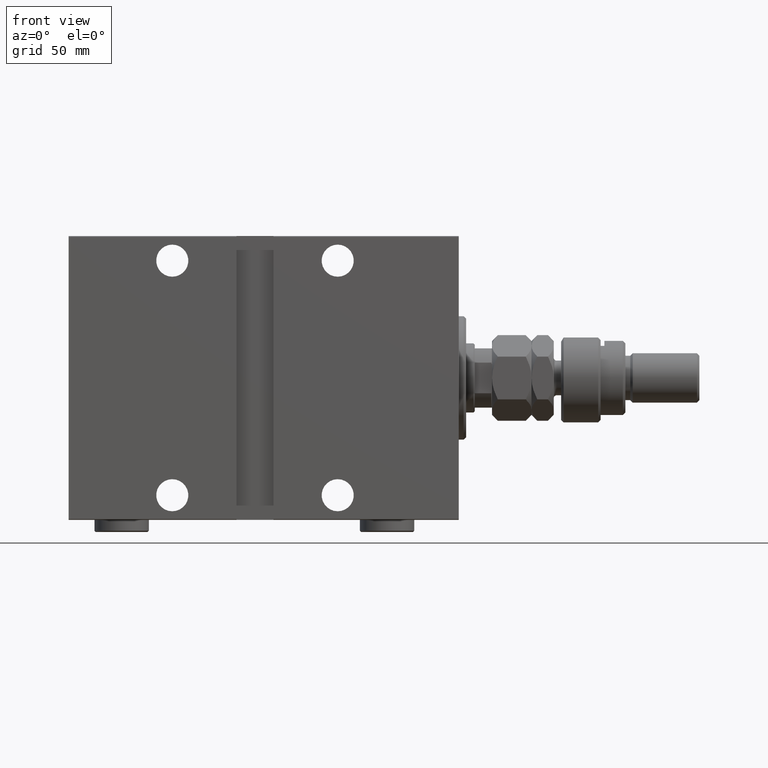
[diagram: clean part render]
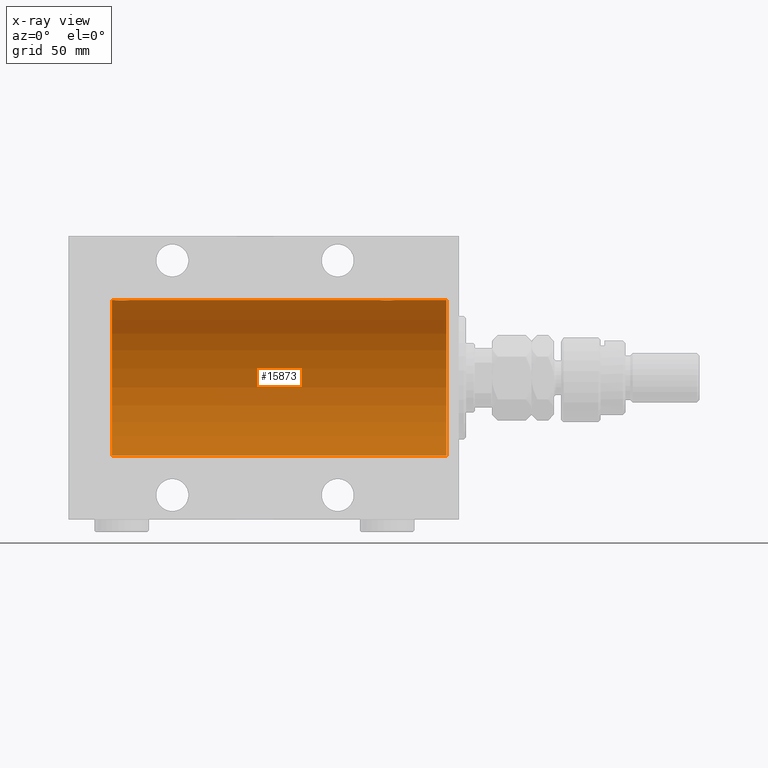
[diagram: x-ray — body ghosted, one internal face saturated and labeled with its STEP entity id]
A machine part, front view, then the same camera in x-ray: the body is ghosted and one INTERNAL B-rep face — a face not visible from any outside direction — is saturated and labeled: STEP entity #15873.
In plain terms, the highlighted cylindrical surface (partial cylindrical patch) has radius 31.5 mm, axis along (1, 0, -0).
Its self-contained STEP definition (entity closure, byte-faithful):
#548 = EDGE_CURVE ( 'NONE', #21606, #18342, #28267, .T. ) ;
#700 = DIRECTION ( 'NONE',  ( -1.000000000000000000, -0.000000000000000000, -0.000000000000000000 ) ) ;
#787 = VERTEX_POINT ( 'NONE', #28216 ) ;
#1237 = CARTESIAN_POINT ( 'NONE',  ( 26.09580549261944071, -0.7775502215293879082, 31.49099686045559565 ) ) ;
#1557 = DIRECTION ( 'NONE',  ( -1.000000000000000000, -0.000000000000000000, -0.000000000000000000 ) ) ;
#2182 = CARTESIAN_POINT ( 'NONE',  ( 30.82704225370269668, -2.387531469909775605, 31.40957782495775419 ) ) ;
#2404 = CARTESIAN_POINT ( 'NONE',  ( 26.39582218725271190, -1.502389880413000922, 31.46458023642405166 ) ) ;
#2419 = CARTESIAN_POINT ( 'NONE',  ( 133.8958221872527474, -1.502389880412996703, 31.46458023642405877 ) ) ;
#2638 = CARTESIAN_POINT ( 'NONE',  ( 28.03055544341478367, -2.845838211243338023, 31.37127560316188024 ) ) ;
#2656 = CARTESIAN_POINT ( 'NONE',  ( 134.5153964007533887, -2.258226318633794527, 31.41925597582824992 ) ) ;
#2898 = CARTESIAN_POINT ( 'NONE',  ( 139.5000000000000000, -0.3965830985361755712, 31.50000000000000000 ) ) ;
#3365 = CARTESIAN_POINT ( 'NONE',  ( 136.2995354102590113, -2.999845816735298598, 31.35683219171744796 ) ) ;
#3676 = LINE ( 'NONE', #26117, #35295 ) ;
#4490 = FACE_OUTER_BOUND ( 'NONE', #45487, .T. ) ;
#5281 = CARTESIAN_POINT ( 'NONE',  ( 29.77469094434372465, -2.904836261170110845, 31.36579955910872997 ) ) ;
#5989 = CARTESIAN_POINT ( 'NONE',  ( 31.69529642359011135, -1.331741824817660236, 31.47235367475394341 ) ) ;
#6227 = CARTESIAN_POINT ( 'NONE',  ( 139.1952964235900936, -1.331741824817663344, 31.47235367475393630 ) ) ;
#6364 = EDGE_CURVE ( 'NONE', #6410, #21606, #3676, .T. ) ;
#6410 = VERTEX_POINT ( 'NONE', #25416 ) ;
#6939 = CARTESIAN_POINT ( 'NONE',  ( 137.2746909443437175, -2.904836261170105960, 31.36579955910873707 ) ) ;
#6944 = VERTEX_POINT ( 'NONE', #28180 ) ;
#7596 = DIRECTION ( 'NONE',  ( -1.000000000000000000, -0.000000000000000000, -0.000000000000000000 ) ) ;
#7975 = EDGE_CURVE ( 'NONE', #13580, #17871, #37231, .T. ) ;
#8346 = B_SPLINE_CURVE_WITH_KNOTS ( 'NONE', 3,
 ( #11988, #33946, #26554, #1237, #30379, #12214, #2404, #16758, #30846, #20118, #45146, #42280, #38693, #2638, #16530, #41572, #45852, #17225, #37998, #5281, #35355, #9804, #9567, #2182, #46083, #13158, #45386, #24156, #5989, #20349, #27011, #45628 ),
 .UNSPECIFIED., .F., .F.,
 ( 4, 2, 2, 2, 2, 2, 2, 2, 2, 2, 2, 2, 2, 2, 2, 4 ),
 ( 0.009384682587134636142, 0.009971088165454035368, 0.01055749374377343633, 0.01114389932209283729, 0.01173030490041223652, 0.01231671047873163748, 0.01290311605705103844, 0.01348952163537044113, 0.01407592721368984209, 0.01466233279200924305, 0.01524873837032864402, 0.01583514394864804498, 0.01642154952696744594, 0.01700795510528684690, 0.01759436068360624786, 0.01876717184024504284 ),
 .UNSPECIFIED. ) ;
#8952 = LINE ( 'NONE', #34266, #35517 ) ;
#9567 = CARTESIAN_POINT ( 'NONE',  ( 30.50098156296147422, -2.604888532024794312, 31.39229907792057972 ) ) ;
#9581 = CARTESIAN_POINT ( 'NONE',  ( 135.7211808735767988, -2.903733559410680343, 31.36590199989304395 ) ) ;
#9727 = DIRECTION ( 'NONE',  ( -1.000000000000000000, 0.000000000000000000, 0.000000000000000000 ) ) ;
#9804 = CARTESIAN_POINT ( 'NONE',  ( 30.32865414687508832, -2.696917666262911961, 31.38442820068732075 ) ) ;
#9819 = CARTESIAN_POINT ( 'NONE',  ( 139.1019214043915895, -1.506272792558317253, 31.46439306106696421 ) ) ;
#10052 = CARTESIAN_POINT ( 'NONE',  ( 133.8028576116330441, -1.328004386210311027, 31.47251238182141009 ) ) ;
#10366 = CARTESIAN_POINT ( 'NONE',  ( 140.5000000000000000, 0.000000000000000000, 31.50000000000000000 ) ) ;
#10534 = CARTESIAN_POINT ( 'NONE',  ( 138.7582450190326711, -1.984587626072075617, 31.43772577203671759 ) ) ;
#10949 = CYLINDRICAL_SURFACE ( 'NONE', #19184, 31.50000000000000000 ) ;
#10955 = EDGE_CURVE ( 'NONE', #787, #28714, #8346, .T. ) ;
#11397 = CARTESIAN_POINT ( 'NONE',  ( 5.000000000000004441, 3.857637417314162689E-15, -31.50000000000000000 ) ) ;
#11506 = AXIS2_PLACEMENT_3D ( 'NONE', #14181, #28504, #43054 ) ;
#11771 = CARTESIAN_POINT ( 'NONE',  ( 5.000000000000004441, 0.000000000000000000, 31.50000000000000000 ) ) ;
#11988 = CARTESIAN_POINT ( 'NONE',  ( 26.00000000000000355, -2.117263226567934635E-23, 31.50000000000000000 ) ) ;
#12214 = CARTESIAN_POINT ( 'NONE',  ( 26.30285761163299441, -1.328004386210307919, 31.47251238182140298 ) ) ;
#12406 = ORIENTED_EDGE ( 'NONE', *, *, #10955, .T. ) ;
#13158 = CARTESIAN_POINT ( 'NONE',  ( 31.25824501903267461, -1.984587626072075617, 31.43772577203673180 ) ) ;
#13403 = CARTESIAN_POINT ( 'NONE',  ( 135.5305554434147552, -2.845838211243331362, 31.37127560316186603 ) ) ;
#13580 = VERTEX_POINT ( 'NONE', #10366 ) ;
#13879 = CARTESIAN_POINT ( 'NONE',  ( 133.5958054926194336, -0.7775502215293840225, 31.49099686045559565 ) ) ;
#14118 = CARTESIAN_POINT ( 'NONE',  ( 139.5000000000000000, -1.371858964305622898E-15, 31.50000000000000000 ) ) ;
#14181 = CARTESIAN_POINT ( 'NONE',  ( 5.000000000000004441, 0.000000000000000000, 0.000000000000000000 ) ) ;
#14360 = CARTESIAN_POINT ( 'NONE',  ( 134.9954371499300407, -2.602826974226398082, 31.39247100434485560 ) ) ;
#14559 = CARTESIAN_POINT ( 'NONE',  ( 140.5000000000000000, 0.000000000000000000, 31.50000000000000000 ) ) ;
#14621 = EDGE_CURVE ( 'NONE', #6944, #17871, #39507, .T. ) ;
#15873 = ADVANCED_FACE ( 'NONE', ( #4490 ), #10949, .F. ) ;
#16530 = CARTESIAN_POINT ( 'NONE',  ( 28.22118087357679528, -2.903733559410688336, 31.36590199989304395 ) ) ;
#16758 = CARTESIAN_POINT ( 'NONE',  ( 26.61498557723073333, -1.830470878313879668, 31.44719957596828763 ) ) ;
#17225 = CARTESIAN_POINT ( 'NONE',  ( 29.19582294439440062, -3.000152387858491476, 31.35680286115500337 ) ) ;
#17241 = CARTESIAN_POINT ( 'NONE',  ( 139.4202066295004272, -0.7905881588836176643, 31.49214662150070509 ) ) ;
#17710 = CARTESIAN_POINT ( 'NONE',  ( 134.2390453754387636, -1.981494824113338549, 31.43792153503156683 ) ) ;
#17871 = VERTEX_POINT ( 'NONE', #46275 ) ;
#17946 = CARTESIAN_POINT ( 'NONE',  ( 138.4814346287304261, -2.261012035264783560, 31.41905495618427935 ) ) ;
#18342 = VERTEX_POINT ( 'NONE', #11771 ) ;
#19184 = AXIS2_PLACEMENT_3D ( 'NONE', #44586, #7596, #40074 ) ;
#19449 = LINE ( 'NONE', #14559, #33199 ) ;
#20118 = CARTESIAN_POINT ( 'NONE',  ( 27.01539640075336379, -2.258226318633789642, 31.41925597582827123 ) ) ;
#20349 = CARTESIAN_POINT ( 'NONE',  ( 31.92020662950041654, -0.7905881588836122242, 31.49214662150069088 ) ) ;
#20628 = ORIENTED_EDGE ( 'NONE', *, *, #30254, .F. ) ;
#21212 = DIRECTION ( 'NONE',  ( 0.000000000000000000, 0.000000000000000000, 1.000000000000000000 ) ) ;
#21606 = VERTEX_POINT ( 'NONE', #11397 ) ;
#22653 = AXIS2_PLACEMENT_3D ( 'NONE', #42667, #9727, #21212 ) ;
#23642 = ORIENTED_EDGE ( 'NONE', *, *, #26710, .F. ) ;
#24156 = CARTESIAN_POINT ( 'NONE',  ( 31.60192140439154684, -1.506272792558327467, 31.46439306106696421 ) ) ;
#24638 = CARTESIAN_POINT ( 'NONE',  ( 135.1676004190083518, -2.695056442718528178, 31.38458855656186230 ) ) ;
#25416 = CARTESIAN_POINT ( 'NONE',  ( 140.5000000000000000, 3.857637417314162689E-15, -31.50000000000000000 ) ) ;
#26117 = CARTESIAN_POINT ( 'NONE',  ( 140.5000000000000000, 3.857637417314162689E-15, -31.50000000000000000 ) ) ;
#26554 = CARTESIAN_POINT ( 'NONE',  ( 26.01898490608483527, -0.3904857149112059278, 31.49817436802766224 ) ) ;
#26710 = EDGE_CURVE ( 'NONE', #787, #18342, #8952, .T. ) ;
#26945 = CARTESIAN_POINT ( 'NONE',  ( 140.5000000000000000, 0.000000000000000000, 31.50000000000000000 ) ) ;
#27011 = CARTESIAN_POINT ( 'NONE',  ( 32.00000000000000000, -0.3965830985361757932, 31.50000000000000711 ) ) ;
#28180 = CARTESIAN_POINT ( 'NONE',  ( 133.5000000000000000, -2.118130973563677748E-23, 31.50000000000000000 ) ) ;
#28204 = CARTESIAN_POINT ( 'NONE',  ( 134.1149855772307546, -1.830470878313874339, 31.44719957596828763 ) ) ;
#28216 = CARTESIAN_POINT ( 'NONE',  ( 26.00000000000000355, -2.117263226567934635E-23, 31.50000000000000000 ) ) ;
#28267 = CIRCLE ( 'NONE', #11506, 31.50000000000000000 ) ;
#28442 = CARTESIAN_POINT ( 'NONE',  ( 136.1046588899990297, -2.980257240990054957, 31.35872356503798031 ) ) ;
#28504 = DIRECTION ( 'NONE',  ( -1.000000000000000000, 0.000000000000000000, 0.000000000000000000 ) ) ;
#28714 = VERTEX_POINT ( 'NONE', #43885 ) ;
#28919 = CARTESIAN_POINT ( 'NONE',  ( 138.3270422537026434, -2.387531469909777826, 31.40957782495775419 ) ) ;
#29721 = EDGE_CURVE ( 'NONE', #6410, #13580, #33983, .T. ) ;
#30254 = EDGE_CURVE ( 'NONE', #6944, #28714, #19449, .T. ) ;
#30379 = CARTESIAN_POINT ( 'NONE',  ( 26.15339536257502218, -0.9669616078782009572, 31.48567319468626735 ) ) ;
#30846 = CARTESIAN_POINT ( 'NONE',  ( 26.73904537543871029, -1.981494824113332998, 31.43792153503156683 ) ) ;
#31423 = VECTOR ( 'NONE', #700, 1000.000000000000000 ) ;
#31804 = CARTESIAN_POINT ( 'NONE',  ( 137.8286541468750954, -2.696917666262911073, 31.38442820068732075 ) ) ;
#32272 = CARTESIAN_POINT ( 'NONE',  ( 134.6695630851299654, -2.384935707362438873, 31.40977595730572958 ) ) ;
#32501 = CARTESIAN_POINT ( 'NONE',  ( 133.6533953625750542, -0.9669616078782045099, 31.48567319468626735 ) ) ;
#33199 = VECTOR ( 'NONE', #39860, 1000.000000000000000 ) ;
#33946 = CARTESIAN_POINT ( 'NONE',  ( 26.00000000000000355, -0.1958045626907478631, 31.50000000000000000 ) ) ;
#33983 = CIRCLE ( 'NONE', #22653, 31.50000000000000000 ) ;
#34266 = CARTESIAN_POINT ( 'NONE',  ( 140.5000000000000000, 0.000000000000000000, 31.50000000000000000 ) ) ;
#35136 = CARTESIAN_POINT ( 'NONE',  ( 133.4999999999999716, -0.1958045626907467252, 31.49999999999999289 ) ) ;
#35295 = VECTOR ( 'NONE', #44238, 1000.000000000000000 ) ;
#35355 = CARTESIAN_POINT ( 'NONE',  ( 29.96515729810639783, -2.847307171789040581, 31.37114183851420890 ) ) ;
#35517 = VECTOR ( 'NONE', #1557, 1000.000000000000000 ) ;
#35608 = CARTESIAN_POINT ( 'NONE',  ( 133.5189849060848530, -0.3904857149112032078, 31.49817436802768000 ) ) ;
#36078 = CARTESIAN_POINT ( 'NONE',  ( 138.0009815629614707, -2.604888532024795200, 31.39229907792057972 ) ) ;
#37231 = LINE ( 'NONE', #26945, #31423 ) ;
#37438 = ORIENTED_EDGE ( 'NONE', *, *, #29721, .F. ) ;
#37888 = ORIENTED_EDGE ( 'NONE', *, *, #548, .T. ) ;
#37998 = CARTESIAN_POINT ( 'NONE',  ( 29.39114547339941907, -2.980809450819707163, 31.35867074198615967 ) ) ;
#38693 = CARTESIAN_POINT ( 'NONE',  ( 27.66760041900836242, -2.695056442718537060, 31.38458855656185875 ) ) ;
#39428 = CARTESIAN_POINT ( 'NONE',  ( 136.6958229443944219, -3.000152387858489256, 31.35680286115500337 ) ) ;
#39507 = B_SPLINE_CURVE_WITH_KNOTS ( 'NONE', 3,
 ( #46337, #35136, #35608, #13879, #32501, #10052, #2419, #28204, #17710, #2656, #32272, #14360, #24638, #13403, #9581, #28442, #3365, #39428, #46814, #6939, #43231, #31804, #36078, #28919, #17946, #10534, #42528, #9819, #6227, #17241, #2898, #14118 ),
 .UNSPECIFIED., .F., .F.,
 ( 4, 2, 2, 2, 2, 2, 2, 2, 2, 2, 2, 2, 2, 2, 2, 4 ),
 ( 0.009384682587134629203, 0.009971088165454028429, 0.01055749374377342766, 0.01114389932209282688, 0.01173030490041222784, 0.01231671047873162707, 0.01290311605705102629, 0.01348952163537042725, 0.01407592721368982475, 0.01466233279200922571, 0.01524873837032862493, 0.01583514394864802416, 0.01642154952696742165, 0.01700795510528682261, 0.01759436068360622357, 0.01876717184024502202 ),
 .UNSPECIFIED. ) ;
#39860 = DIRECTION ( 'NONE',  ( -1.000000000000000000, -0.000000000000000000, -0.000000000000000000 ) ) ;
#40074 = DIRECTION ( 'NONE',  ( 0.000000000000000000, 0.000000000000000000, 1.000000000000000000 ) ) ;
#40409 = ORIENTED_EDGE ( 'NONE', *, *, #6364, .T. ) ;
#41572 = CARTESIAN_POINT ( 'NONE',  ( 28.60465888999905815, -2.980257240990060286, 31.35872356503798031 ) ) ;
#42280 = CARTESIAN_POINT ( 'NONE',  ( 27.49543714993000521, -2.602826974226399859, 31.39247100434484850 ) ) ;
#42528 = CARTESIAN_POINT ( 'NONE',  ( 138.8824687226663457, -1.833765390051035116, 31.44700610425690712 ) ) ;
#42571 = ORIENTED_EDGE ( 'NONE', *, *, #7975, .F. ) ;
#42667 = CARTESIAN_POINT ( 'NONE',  ( 140.5000000000000000, 0.000000000000000000, 0.000000000000000000 ) ) ;
#43054 = DIRECTION ( 'NONE',  ( 0.000000000000000000, 0.000000000000000000, 1.000000000000000000 ) ) ;
#43231 = CARTESIAN_POINT ( 'NONE',  ( 137.4651572981064191, -2.847307171789039693, 31.37114183851420179 ) ) ;
#43885 = CARTESIAN_POINT ( 'NONE',  ( 32.00000000000000000, -2.212280765433387153E-16, 31.50000000000000000 ) ) ;
#44196 = ORIENTED_EDGE ( 'NONE', *, *, #14621, .T. ) ;
#44238 = DIRECTION ( 'NONE',  ( -1.000000000000000000, -0.000000000000000000, -0.000000000000000000 ) ) ;
#44586 = CARTESIAN_POINT ( 'NONE',  ( 140.5000000000000000, 0.000000000000000000, 0.000000000000000000 ) ) ;
#45146 = CARTESIAN_POINT ( 'NONE',  ( 27.16956308512997964, -2.384935707362441537, 31.40977595730572958 ) ) ;
#45386 = CARTESIAN_POINT ( 'NONE',  ( 31.38246872266632082, -1.833765390051044220, 31.44700610425690712 ) ) ;
#45487 = EDGE_LOOP ( 'NONE', ( #37438, #40409, #37888, #23642, #12406, #20628, #44196, #42571 ) ) ;
#45628 = CARTESIAN_POINT ( 'NONE',  ( 32.00000000000000000, -2.212280765433387153E-16, 31.50000000000000000 ) ) ;
#45852 = CARTESIAN_POINT ( 'NONE',  ( 28.79953541025905395, -2.999845816735302151, 31.35683219171744796 ) ) ;
#46083 = CARTESIAN_POINT ( 'NONE',  ( 30.98143462873041543, -2.261012035264784004, 31.41905495618427935 ) ) ;
#46275 = CARTESIAN_POINT ( 'NONE',  ( 139.5000000000000000, -1.371858964305622898E-15, 31.50000000000000000 ) ) ;
#46337 = CARTESIAN_POINT ( 'NONE',  ( 133.5000000000000000, -2.118130973563677748E-23, 31.50000000000000000 ) ) ;
#46814 = CARTESIAN_POINT ( 'NONE',  ( 136.8911454733994333, -2.980809450819703166, 31.35867074198615256 ) ) ;